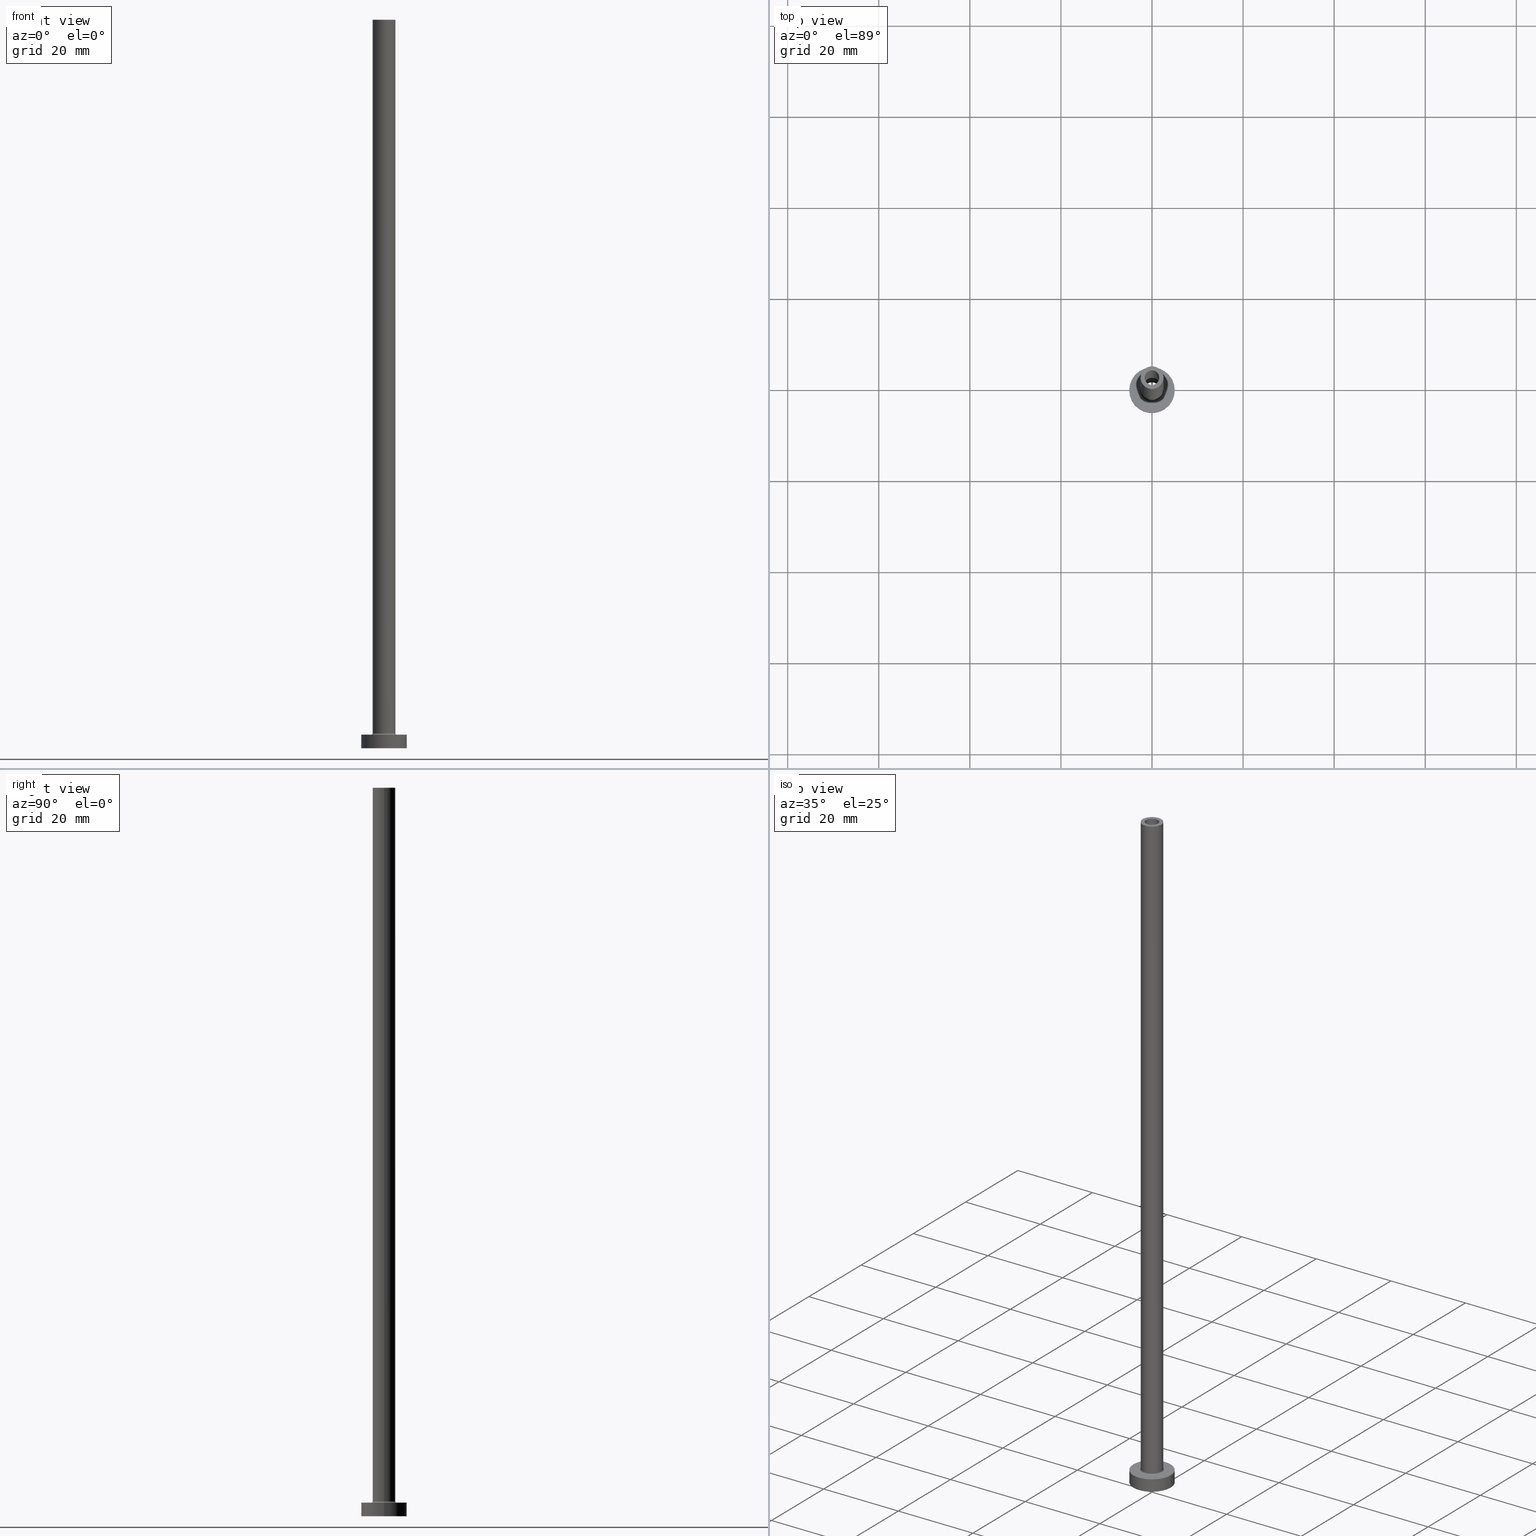
[diagram: canonical four-view strip — front | top / right | iso, engineering-drawing reading convention]
A machine part, canonical four-view strip (front | top / right | iso — engineering-drawing reading convention). The complete STEP part file that produces these views, byte-faithful:
ISO-10303-21;
HEADER;
FILE_DESCRIPTION (( 'STEP AP203' ),
    '1' );
FILE_NAME ('ea67.STEP',
    '2023-02-13T17:57:14',
    ( '' ),
    ( '' ),
    'SwSTEP 2.0',
    'SolidWorks 2019',
    '' );
FILE_SCHEMA (( 'CONFIG_CONTROL_DESIGN' ));
ENDSEC;

DATA;
#1 = ORIENTED_EDGE ( 'NONE', *, *, #189, .F. ) ;
#2 = DIRECTION ( 'NONE',  ( -0.000000000000000000, -0.000000000000000000, -1.000000000000000000 ) ) ;
#3 = CARTESIAN_POINT ( 'NONE',  ( 0.000000000000000000, 0.000000000000000000, 0.000000000000000000 ) ) ;
#4 =( NAMED_UNIT ( * ) PLANE_ANGLE_UNIT ( ) SI_UNIT ( $, .RADIAN. ) );
#5 = CIRCLE ( 'NONE', #105, 5.000000000000000000 ) ;
#6 = CARTESIAN_POINT ( 'NONE',  ( 0.000000000000000000, 0.000000000000000000, 115.0000000000000000 ) ) ;
#7 = ORIENTED_EDGE ( 'NONE', *, *, #322, .F. ) ;
#8 = LINE ( 'NONE', #71, #34 ) ;
#9 = ORIENTED_EDGE ( 'NONE', *, *, #429, .T. ) ;
#10 = APPROVAL_ROLE ( '' ) ;
#11 = AXIS2_PLACEMENT_3D ( 'NONE', #248, #55, #193 ) ;
#12 = LOCAL_TIME ( 18, 57, 14.00000000000000000, #291 ) ;
#13 = CC_DESIGN_DATE_AND_TIME_ASSIGNMENT ( #203, #300, ( #26 ) ) ;
#14 = ORIENTED_EDGE ( 'NONE', *, *, #431, .F. ) ;
#15 = COORDINATED_UNIVERSAL_TIME_OFFSET ( 1, 0, .AHEAD. ) ;
#16 = VERTEX_POINT ( 'NONE', #308 ) ;
#17 = CARTESIAN_POINT ( 'NONE',  ( 0.000000000000000000, 0.000000000000000000, 160.0000000000000000 ) ) ;
#18 = AXIS2_PLACEMENT_3D ( 'NONE', #251, #434, #282 ) ;
#19 = AXIS2_PLACEMENT_3D ( 'NONE', #319, #276, #247 ) ;
#20 = DIRECTION ( 'NONE',  ( -1.000000000000000000, 0.000000000000000000, 0.000000000000000000 ) ) ;
#21 = MANIFOLD_SOLID_BREP ( 'Odebrat vysunut�m4', #22 ) ;
#22 = CLOSED_SHELL ( 'NONE', ( #448, #305, #377, #381, #336, #229, #272, #419, #302, #129, #209, #61, #254, #367 ) ) ;
#23 = PERSON_AND_ORGANIZATION_ROLE ( 'classification_officer' ) ;
#24 = EDGE_LOOP ( 'NONE', ( #321, #253, #119, #414 ) ) ;
#25 = ORIENTED_EDGE ( 'NONE', *, *, #451, .F. ) ;
#26 = SECURITY_CLASSIFICATION ( '', '', #270 ) ;
#27 = EDGE_CURVE ( 'NONE', #215, #154, #460, .T. ) ;
#28 = CARTESIAN_POINT ( 'NONE',  ( 5.000000000000000000, 6.123233995736766282E-16, 0.000000000000000000 ) ) ;
#29 = DIRECTION ( 'NONE',  ( -1.000000000000000000, 0.000000000000000000, 0.000000000000000000 ) ) ;
#30 = FACE_OUTER_BOUND ( 'NONE', #446, .T. ) ;
#31 = EDGE_CURVE ( 'NONE', #150, #441, #453, .T. ) ;
#32 = EDGE_CURVE ( 'NONE', #70, #369, #459, .T. ) ;
#33 = CARTESIAN_POINT ( 'NONE',  ( 0.000000000000000000, 0.000000000000000000, 0.000000000000000000 ) ) ;
#34 = VECTOR ( 'NONE', #212, 1000.000000000000000 ) ;
#35 = DIRECTION ( 'NONE',  ( 1.000000000000000000, 0.000000000000000000, 0.000000000000000000 ) ) ;
#36 = PLANE ( 'NONE',  #90 ) ;
#37 = DIRECTION ( 'NONE',  ( 0.000000000000000000, 0.000000000000000000, 1.000000000000000000 ) ) ;
#38 = AXIS2_PLACEMENT_3D ( 'NONE', #33, #175, #237 ) ;
#39 = DIRECTION ( 'NONE',  ( 0.000000000000000000, 0.000000000000000000, -1.000000000000000000 ) ) ;
#40 = ORIENTED_EDGE ( 'NONE', *, *, #27, .T. ) ;
#41 = DIRECTION ( 'NONE',  ( 0.000000000000000000, 0.000000000000000000, 1.000000000000000000 ) ) ;
#42 = CARTESIAN_POINT ( 'NONE',  ( 0.000000000000000000, 0.000000000000000000, 115.0000000000000000 ) ) ;
#43 = CARTESIAN_POINT ( 'NONE',  ( -1.600000000000000089, 0.000000000000000000, 160.0000000000000000 ) ) ;
#44 = DIRECTION ( 'NONE',  ( 0.000000000000000000, 0.000000000000000000, -1.000000000000000000 ) ) ;
#45 = ORIENTED_EDGE ( 'NONE', *, *, #356, .T. ) ;
#46 = CYLINDRICAL_SURFACE ( 'NONE', #231, 2.500000000000000000 ) ;
#47 = FACE_OUTER_BOUND ( 'NONE', #373, .T. ) ;
#48 = EDGE_LOOP ( 'NONE', ( #258, #406, #353, #390 ) ) ;
#49 = EDGE_CURVE ( 'NONE', #257, #283, #85, .T. ) ;
#50 = LOCAL_TIME ( 18, 57, 14.00000000000000000, #15 ) ;
#51 = ORIENTED_EDGE ( 'NONE', *, *, #27, .F. ) ;
#52 = PERSON_AND_ORGANIZATION ( #412, #91 ) ;
#53 = CIRCLE ( 'NONE', #167, 5.000000000000000000 ) ;
#54 = EDGE_LOOP ( 'NONE', ( #400, #7 ) ) ;
#55 = DIRECTION ( 'NONE',  ( 0.000000000000000000, 0.000000000000000000, 1.000000000000000000 ) ) ;
#56 = DIRECTION ( 'NONE',  ( 0.000000000000000000, -1.000000000000000000, 0.000000000000000000 ) ) ;
#57 = VECTOR ( 'NONE', #39, 1000.000000000000000 ) ;
#58 = FACE_OUTER_BOUND ( 'NONE', #281, .T. ) ;
#59 = AXIS2_PLACEMENT_3D ( 'NONE', #313, #245, #143 ) ;
#60 = CARTESIAN_POINT ( 'NONE',  ( 0.000000000000000000, 0.000000000000000000, 160.0000000000000000 ) ) ;
#61 = ADVANCED_FACE ( 'NONE', ( #423 ), #211, .F. ) ;
#62 = DIRECTION ( 'NONE',  ( 1.000000000000000000, 0.000000000000000000, -0.000000000000000000 ) ) ;
#63 = CARTESIAN_POINT ( 'NONE',  ( -2.799999999999999822, 3.429011037612589276E-16, 2.999999999999998668 ) ) ;
#64 = VECTOR ( 'NONE', #315, 1000.000000000000000 ) ;
#65 = LOCAL_TIME ( 18, 57, 14.00000000000000000, #161 ) ;
#66 = FACE_OUTER_BOUND ( 'NONE', #290, .T. ) ;
#67 = DIRECTION ( 'NONE',  ( 1.000000000000000000, 0.000000000000000000, 0.000000000000000000 ) ) ;
#68 = CARTESIAN_POINT ( 'NONE',  ( 5.000000000000000000, 6.123233995736766282E-16, 3.000000000000000000 ) ) ;
#69 = CARTESIAN_POINT ( 'NONE',  ( 1.600000000000000089, 1.959434878635764737E-16, 160.0000000000000000 ) ) ;
#70 = VERTEX_POINT ( 'NONE', #174 ) ;
#71 = CARTESIAN_POINT ( 'NONE',  ( -1.750000000000000000, 0.000000000000000000, 119.9497474683058442 ) ) ;
#72 = CARTESIAN_POINT ( 'NONE',  ( 1.750000000000000000, 2.143131898507868297E-16, 119.9497474683058442 ) ) ;
#73 = ORIENTED_EDGE ( 'NONE', *, *, #156, .F. ) ;
#74 = CARTESIAN_POINT ( 'NONE',  ( 0.000000000000000000, 0.000000000000000000, 160.0000000000000000 ) ) ;
#75 = FACE_OUTER_BOUND ( 'NONE', #24, .T. ) ;
#76 = EDGE_LOOP ( 'NONE', ( #112, #435 ) ) ;
#77 = EDGE_CURVE ( 'NONE', #324, #349, #5, .T. ) ;
#78 = EDGE_CURVE ( 'NONE', #184, #369, #357, .T. ) ;
#79 = VERTEX_POINT ( 'NONE', #98 ) ;
#80 = EDGE_CURVE ( 'NONE', #16, #225, #53, .T. ) ;
#81 = PERSON_AND_ORGANIZATION ( #412, #91 ) ;
#82 = VERTEX_POINT ( 'NONE', #376 ) ;
#83 = APPROVAL_STATUS ( 'not_yet_approved' ) ;
#84 = DIRECTION ( 'NONE',  ( 1.000000000000000000, 0.000000000000000000, 0.000000000000000000 ) ) ;
#85 = CIRCLE ( 'NONE', #246, 1.750000000000000000 ) ;
#86 = PRODUCT_RELATED_PRODUCT_CATEGORY ( 'detail', '', ( #422 ) ) ;
#87 = DIRECTION ( 'NONE',  ( -1.000000000000000000, 0.000000000000000000, 0.000000000000000000 ) ) ;
#88 = UNCERTAINTY_MEASURE_WITH_UNIT (LENGTH_MEASURE( 1.000000000000000082E-05 ), #146, 'distance_accuracy_value', 'NONE');
#89 = DIRECTION ( 'NONE',  ( 0.000000000000000000, 0.000000000000000000, 1.000000000000000000 ) ) ;
#90 = AXIS2_PLACEMENT_3D ( 'NONE', #60, #385, #204 ) ;
#91 = ORGANIZATION ( 'NEUR�EN�', 'NEUR�EN�', '' ) ;
#92 = APPROVAL_STATUS ( 'not_yet_approved' ) ;
#93 = CARTESIAN_POINT ( 'NONE',  ( -5.000000000000000000, 0.000000000000000000, 0.000000000000000000 ) ) ;
#94 = PERSON_AND_ORGANIZATION_ROLE ( 'creator' ) ;
#95 = EDGE_LOOP ( 'NONE', ( #14, #40, #127, #397 ) ) ;
#96 = CYLINDRICAL_SURFACE ( 'NONE', #121, 5.000000000000000000 ) ;
#97 = EDGE_CURVE ( 'NONE', #16, #324, #109, .T. ) ;
#98 = CARTESIAN_POINT ( 'NONE',  ( 1.750000000000000000, 2.143131898507868297E-16, 0.000000000000000000 ) ) ;
#99 = CIRCLE ( 'NONE', #408, 5.000000000000000000 ) ;
#100 = PERSON_AND_ORGANIZATION ( #412, #91 ) ;
#101 = ADVANCED_BREP_SHAPE_REPRESENTATION ( 'ea67', ( #21, #208 ), #288 ) ;
#102 = CARTESIAN_POINT ( 'NONE',  ( 0.000000000000000000, 0.000000000000000000, 3.000000000000000000 ) ) ;
#103 = EDGE_CURVE ( 'NONE', #362, #79, #437, .T. ) ;
#104 = EDGE_CURVE ( 'NONE', #402, #70, #292, .T. ) ;
#105 = AXIS2_PLACEMENT_3D ( 'NONE', #172, #137, #141 ) ;
#106 = CARTESIAN_POINT ( 'NONE',  ( 0.000000000000000000, 0.000000000000000000, 160.0000000000000000 ) ) ;
#107 = DIRECTION ( 'NONE',  ( 1.000000000000000000, 0.000000000000000000, 0.000000000000000000 ) ) ;
#108 = DIRECTION ( 'NONE',  ( 1.000000000000000000, 0.000000000000000000, 0.000000000000000000 ) ) ;
#109 = LINE ( 'NONE', #243, #312 ) ;
#110 = EDGE_LOOP ( 'NONE', ( #159, #346, #411, #304 ) ) ;
#111 = CARTESIAN_POINT ( 'NONE',  ( -1.750000000000000000, 0.000000000000000000, 0.000000000000000000 ) ) ;
#112 = ORIENTED_EDGE ( 'NONE', *, *, #103, .F. ) ;
#113 = PLANE ( 'NONE',  #177 ) ;
#114 = FACE_BOUND ( 'NONE', #438, .T. ) ;
#115 = ORIENTED_EDGE ( 'NONE', *, *, #429, .F. ) ;
#116 = CYLINDRICAL_SURFACE ( 'NONE', #297, 1.600000000000000089 ) ;
#117 = DESIGN_CONTEXT ( 'detailed design', #425, 'design' ) ;
#118 = DIRECTION ( 'NONE',  ( 0.000000000000000000, 0.000000000000000000, 1.000000000000000000 ) ) ;
#119 = ORIENTED_EDGE ( 'NONE', *, *, #188, .T. ) ;
#120 = APPLICATION_PROTOCOL_DEFINITION ( 'international standard', 'config_control_design', 1994, #213 ) ;
#121 = AXIS2_PLACEMENT_3D ( 'NONE', #173, #232, #332 ) ;
#122 = PRODUCT_DEFINITION_SHAPE ( 'NONE', 'NONE',  #160 ) ;
#123 = EDGE_CURVE ( 'NONE', #349, #324, #230, .T. ) ;
#124 = ORIENTED_EDGE ( 'NONE', *, *, #307, .T. ) ;
#125 = PERSON_AND_ORGANIZATION_ROLE ( 'design_owner' ) ;
#126 = ORIENTED_EDGE ( 'NONE', *, *, #80, .F. ) ;
#127 = ORIENTED_EDGE ( 'NONE', *, *, #399, .F. ) ;
#128 = CYLINDRICAL_SURFACE ( 'NONE', #266, 1.750000000000000000 ) ;
#129 = ADVANCED_FACE ( 'NONE', ( #179, #30 ), #36, .T. ) ;
#130 = VECTOR ( 'NONE', #338, 1000.000000000000000 ) ;
#131 = CYLINDRICAL_SURFACE ( 'NONE', #350, 5.000000000000000000 ) ;
#132 = ORIENTED_EDGE ( 'NONE', *, *, #31, .T. ) ;
#133 = APPROVAL_ROLE ( '' ) ;
#134 = ORIENTED_EDGE ( 'NONE', *, *, #399, .T. ) ;
#135 = DIRECTION ( 'NONE',  ( 0.000000000000000000, 0.000000000000000000, 1.000000000000000000 ) ) ;
#136 = AXIS2_PLACEMENT_3D ( 'NONE', #74, #183, #386 ) ;
#137 = DIRECTION ( 'NONE',  ( 0.000000000000000000, 0.000000000000000000, 1.000000000000000000 ) ) ;
#138 = DATE_AND_TIME ( #372, #370 ) ;
#139 = CARTESIAN_POINT ( 'NONE',  ( 0.000000000000000000, 0.000000000000000000, 0.000000000000000000 ) ) ;
#140 = AXIS2_PLACEMENT_3D ( 'NONE', #216, #2, #382 ) ;
#141 = DIRECTION ( 'NONE',  ( 1.000000000000000000, 0.000000000000000000, 0.000000000000000000 ) ) ;
#142 = AXIS2_PLACEMENT_3D ( 'NONE', #344, #417, #29 ) ;
#143 = DIRECTION ( 'NONE',  ( 1.000000000000000000, 0.000000000000000000, 0.000000000000000000 ) ) ;
#144 = DIRECTION ( 'NONE',  ( -0.000000000000000000, -0.000000000000000000, -1.000000000000000000 ) ) ;
#145 = PRODUCT_DEFINITION_FORMATION_WITH_SPECIFIED_SOURCE ( 'LIBOVOLN�', '', #422, .NOT_KNOWN. ) ;
#146 =( LENGTH_UNIT ( ) NAMED_UNIT ( * ) SI_UNIT ( .MILLI., .METRE. ) );
#147 = DIRECTION ( 'NONE',  ( 1.000000000000000000, 0.000000000000000000, 0.000000000000000000 ) ) ;
#148 = FACE_OUTER_BOUND ( 'NONE', #48, .T. ) ;
#149 = EDGE_CURVE ( 'NONE', #154, #318, #407, .T. ) ;
#150 = VERTEX_POINT ( 'NONE', #240 ) ;
#151 = DIRECTION ( 'NONE',  ( 0.000000000000000000, 0.000000000000000000, -1.000000000000000000 ) ) ;
#152 = CC_DESIGN_PERSON_AND_ORGANIZATION_ASSIGNMENT ( #52, #259, ( #160 ) ) ;
#153 = CYLINDRICAL_SURFACE ( 'NONE', #195, 2.500000000000000000 ) ;
#154 = VERTEX_POINT ( 'NONE', #63 ) ;
#155 = CALENDAR_DATE ( 2023, 13, 2 ) ;
#156 = EDGE_CURVE ( 'NONE', #150, #82, #207, .T. ) ;
#157 = ORIENTED_EDGE ( 'NONE', *, *, #169, .T. ) ;
#158 = CARTESIAN_POINT ( 'NONE',  ( 0.000000000000000000, 0.000000000000000000, 0.000000000000000000 ) ) ;
#159 = ORIENTED_EDGE ( 'NONE', *, *, #31, .F. ) ;
#160 = PRODUCT_DEFINITION ( 'NEZN�M�', '', #145, #117 ) ;
#161 = COORDINATED_UNIVERSAL_TIME_OFFSET ( 1, 0, .AHEAD. ) ;
#162 = AXIS2_PLACEMENT_3D ( 'NONE', #6, #89, #348 ) ;
#163 = FACE_OUTER_BOUND ( 'NONE', #265, .T. ) ;
#164 = APPROVAL_PERSON_ORGANIZATION ( #191, #269, #222 ) ;
#165 = ORIENTED_EDGE ( 'NONE', *, *, #78, .T. ) ;
#166 = LINE ( 'NONE', #72, #340 ) ;
#167 = AXIS2_PLACEMENT_3D ( 'NONE', #102, #275, #67 ) ;
#168 = ORIENTED_EDGE ( 'NONE', *, *, #103, .T. ) ;
#169 = EDGE_CURVE ( 'NONE', #369, #184, #277, .T. ) ;
#170 = ORIENTED_EDGE ( 'NONE', *, *, #431, .T. ) ;
#171 = CALENDAR_DATE ( 2023, 13, 2 ) ;
#172 = CARTESIAN_POINT ( 'NONE',  ( 0.000000000000000000, 0.000000000000000000, 0.000000000000000000 ) ) ;
#173 = CARTESIAN_POINT ( 'NONE',  ( 0.000000000000000000, 0.000000000000000000, 3.000000000000000000 ) ) ;
#174 = CARTESIAN_POINT ( 'NONE',  ( 1.600000000000000089, 1.959434878635764737E-16, 160.0000000000000000 ) ) ;
#175 = DIRECTION ( 'NONE',  ( -0.000000000000000000, -0.000000000000000000, -1.000000000000000000 ) ) ;
#176 = AXIS2_PLACEMENT_3D ( 'NONE', #139, #273, #342 ) ;
#177 = AXIS2_PLACEMENT_3D ( 'NONE', #279, #343, #62 ) ;
#178 = DIRECTION ( 'NONE',  ( 0.000000000000000000, 0.000000000000000000, 1.000000000000000000 ) ) ;
#179 = FACE_BOUND ( 'NONE', #54, .T. ) ;
#180 = DIRECTION ( 'NONE',  ( 0.000000000000000000, 0.000000000000000000, 1.000000000000000000 ) ) ;
#181 = AXIS2_PLACEMENT_3D ( 'NONE', #226, #180, #389 ) ;
#182 = CIRCLE ( 'NONE', #19, 2.500000000000000000 ) ;
#183 = DIRECTION ( 'NONE',  ( 0.000000000000000000, 0.000000000000000000, -1.000000000000000000 ) ) ;
#184 = VERTEX_POINT ( 'NONE', #220 ) ;
#185 = CARTESIAN_POINT ( 'NONE',  ( 0.000000000000000000, 0.000000000000000000, 3.299999999999997158 ) ) ;
#186 = LINE ( 'NONE', #320, #218 ) ;
#187 = ORIENTED_EDGE ( 'NONE', *, *, #239, .T. ) ;
#188 = EDGE_CURVE ( 'NONE', #79, #362, #271, .T. ) ;
#189 = EDGE_CURVE ( 'NONE', #283, #79, #166, .T. ) ;
#190 = ORIENTED_EDGE ( 'NONE', *, *, #97, .T. ) ;
#191 = PERSON_AND_ORGANIZATION ( #412, #91 ) ;
#192 = ORIENTED_EDGE ( 'NONE', *, *, #77, .T. ) ;
#193 = DIRECTION ( 'NONE',  ( 1.000000000000000000, 0.000000000000000000, -0.000000000000000000 ) ) ;
#194 = DIRECTION ( 'NONE',  ( 1.000000000000000000, 0.000000000000000000, 0.000000000000000000 ) ) ;
#195 = AXIS2_PLACEMENT_3D ( 'NONE', #17, #392, #285 ) ;
#196 = CARTESIAN_POINT ( 'NONE',  ( 0.000000000000000000, 0.000000000000000000, 3.000000000000000000 ) ) ;
#197 = CC_DESIGN_PERSON_AND_ORGANIZATION_ASSIGNMENT ( #255, #125, ( #422 ) ) ;
#198 = ORIENTED_EDGE ( 'NONE', *, *, #49, .F. ) ;
#199 = PERSON_AND_ORGANIZATION_ROLE ( 'design_supplier' ) ;
#200 = AXIS2_PLACEMENT_3D ( 'NONE', #42, #118, #84 ) ;
#201 = APPROVAL_PERSON_ORGANIZATION ( #447, #413, #133 ) ;
#202 = CARTESIAN_POINT ( 'NONE',  ( 0.000000000000000000, 0.000000000000000000, 160.0000000000000000 ) ) ;
#203 = DATE_AND_TIME ( #171, #458 ) ;
#204 = DIRECTION ( 'NONE',  ( 1.000000000000000000, 0.000000000000000000, -0.000000000000000000 ) ) ;
#205 = CC_DESIGN_PERSON_AND_ORGANIZATION_ASSIGNMENT ( #330, #199, ( #145 ) ) ;
#206 = TOROIDAL_SURFACE ( 'NONE', #181, 2.799999999999999822, 0.2999999999999999889 ) ;
#207 = LINE ( 'NONE', #311, #64 ) ;
#208 = AXIS2_PLACEMENT_3D ( 'NONE', #158, #366, #194 ) ;
#209 = ADVANCED_FACE ( 'NONE', ( #47 ), #206, .F. ) ;
#210 = DIRECTION ( 'NONE',  ( -0.000000000000000000, -0.000000000000000000, -1.000000000000000000 ) ) ;
#211 = CYLINDRICAL_SURFACE ( 'NONE', #142, 1.750000000000000000 ) ;
#212 = DIRECTION ( 'NONE',  ( 0.000000000000000000, 0.000000000000000000, -1.000000000000000000 ) ) ;
#213 = APPLICATION_CONTEXT ( 'configuration controlled 3d designs of mechanical parts and assemblies' ) ;
#214 = DIRECTION ( 'NONE',  ( 0.000000000000000000, 0.000000000000000000, 1.000000000000000000 ) ) ;
#215 = VERTEX_POINT ( 'NONE', #280 ) ;
#216 = CARTESIAN_POINT ( 'NONE',  ( 0.000000000000000000, 0.000000000000000000, 3.000000000000000000 ) ) ;
#217 = LINE ( 'NONE', #351, #444 ) ;
#218 = VECTOR ( 'NONE', #364, 1000.000000000000000 ) ;
#219 = EDGE_LOOP ( 'NONE', ( #73, #115, #326, #170 ) ) ;
#220 = CARTESIAN_POINT ( 'NONE',  ( -1.600000000000000089, 0.000000000000000000, 115.0000000000000000 ) ) ;
#221 = ORIENTED_EDGE ( 'NONE', *, *, #322, .T. ) ;
#222 = APPROVAL_ROLE ( '' ) ;
#223 = ORIENTED_EDGE ( 'NONE', *, *, #123, .F. ) ;
#224 = CC_DESIGN_APPROVAL ( #413, ( #26 ) ) ;
#225 = VERTEX_POINT ( 'NONE', #405 ) ;
#226 = CARTESIAN_POINT ( 'NONE',  ( 0.000000000000000000, 0.000000000000000000, 3.299999999999997158 ) ) ;
#227 = CARTESIAN_POINT ( 'NONE',  ( 2.799999999999999822, 0.000000000000000000, 3.299999999999997158 ) ) ;
#228 = EDGE_CURVE ( 'NONE', #402, #184, #217, .T. ) ;
#229 = ADVANCED_FACE ( 'NONE', ( #317 ), #131, .T. ) ;
#230 = CIRCLE ( 'NONE', #176, 5.000000000000000000 ) ;
#231 = AXIS2_PLACEMENT_3D ( 'NONE', #242, #210, #424 ) ;
#232 = DIRECTION ( 'NONE',  ( -0.000000000000000000, -0.000000000000000000, -1.000000000000000000 ) ) ;
#233 = ORIENTED_EDGE ( 'NONE', *, *, #77, .F. ) ;
#234 = ORIENTED_EDGE ( 'NONE', *, *, #97, .F. ) ;
#235 = APPROVAL_DATE_TIME ( #138, #413 ) ;
#236 = CIRCLE ( 'NONE', #59, 2.500000000000000000 ) ;
#237 = DIRECTION ( 'NONE',  ( 1.000000000000000000, 0.000000000000000000, 0.000000000000000000 ) ) ;
#238 = CARTESIAN_POINT ( 'NONE',  ( -2.500000000000000000, 0.000000000000000000, 160.0000000000000000 ) ) ;
#239 = EDGE_CURVE ( 'NONE', #283, #257, #295, .T. ) ;
#240 = CARTESIAN_POINT ( 'NONE',  ( 2.500000000000000000, 3.061616997868383141E-16, 160.0000000000000000 ) ) ;
#241 = EDGE_CURVE ( 'NONE', #441, #215, #186, .T. ) ;
#242 = CARTESIAN_POINT ( 'NONE',  ( 0.000000000000000000, 0.000000000000000000, 160.0000000000000000 ) ) ;
#243 = CARTESIAN_POINT ( 'NONE',  ( -5.000000000000000000, 0.000000000000000000, 3.000000000000000000 ) ) ;
#244 = ORIENTED_EDGE ( 'NONE', *, *, #395, .T. ) ;
#245 = DIRECTION ( 'NONE',  ( 0.000000000000000000, 0.000000000000000000, 1.000000000000000000 ) ) ;
#246 = AXIS2_PLACEMENT_3D ( 'NONE', #314, #214, #420 ) ;
#247 = DIRECTION ( 'NONE',  ( 1.000000000000000000, 0.000000000000000000, 0.000000000000000000 ) ) ;
#248 = CARTESIAN_POINT ( 'NONE',  ( 0.000000000000000000, 0.000000000000000000, 3.000000000000000000 ) ) ;
#249 = ORIENTED_EDGE ( 'NONE', *, *, #228, .T. ) ;
#250 = CARTESIAN_POINT ( 'NONE',  ( 0.000000000000000000, 0.000000000000000000, 3.000000000000000000 ) ) ;
#251 = CARTESIAN_POINT ( 'NONE',  ( 0.000000000000000000, 0.000000000000000000, 115.0000000000000000 ) ) ;
#252 = AXIS2_PLACEMENT_3D ( 'NONE', #450, #135, #410 ) ;
#253 = ORIENTED_EDGE ( 'NONE', *, *, #189, .T. ) ;
#254 = ADVANCED_FACE ( 'NONE', ( #426, #163 ), #263, .F. ) ;
#255 = PERSON_AND_ORGANIZATION ( #412, #91 ) ;
#256 = AXIS2_PLACEMENT_3D ( 'NONE', #380, #456, #387 ) ;
#257 = VERTEX_POINT ( 'NONE', #301 ) ;
#258 = ORIENTED_EDGE ( 'NONE', *, *, #104, .T. ) ;
#259 = PERSON_AND_ORGANIZATION_ROLE ( 'creator' ) ;
#260 = CARTESIAN_POINT ( 'NONE',  ( 0.000000000000000000, 0.000000000000000000, 119.9497474683058442 ) ) ;
#261 = ORIENTED_EDGE ( 'NONE', *, *, #123, .T. ) ;
#262 = APPROVAL_STATUS ( 'not_yet_approved' ) ;
#263 = PLANE ( 'NONE',  #18 ) ;
#264 = DIRECTION ( 'NONE',  ( -0.000000000000000000, -0.000000000000000000, -1.000000000000000000 ) ) ;
#265 = EDGE_LOOP ( 'NONE', ( #198, #365 ) ) ;
#266 = AXIS2_PLACEMENT_3D ( 'NONE', #260, #298, #87 ) ;
#267 = TOROIDAL_SURFACE ( 'NONE', #323, 2.799999999999999822, 0.2999999999999999889 ) ;
#268 = ORIENTED_EDGE ( 'NONE', *, *, #443, .T. ) ;
#269 = APPROVAL ( #262, 'NEUR�EN�' ) ;
#270 = SECURITY_CLASSIFICATION_LEVEL ( 'unclassified' ) ;
#271 = CIRCLE ( 'NONE', #374, 1.750000000000000000 ) ;
#272 = ADVANCED_FACE ( 'NONE', ( #114, #430 ), #355, .T. ) ;
#273 = DIRECTION ( 'NONE',  ( 0.000000000000000000, 0.000000000000000000, 1.000000000000000000 ) ) ;
#274 = DIRECTION ( 'NONE',  ( 1.224646799147353207E-16, 1.000000000000000000, -0.000000000000000000 ) ) ;
#275 = DIRECTION ( 'NONE',  ( 0.000000000000000000, 0.000000000000000000, 1.000000000000000000 ) ) ;
#276 = DIRECTION ( 'NONE',  ( 0.000000000000000000, 0.000000000000000000, 1.000000000000000000 ) ) ;
#277 = CIRCLE ( 'NONE', #200, 1.600000000000000089 ) ;
#278 = DIRECTION ( 'NONE',  ( -1.000000000000000000, 1.224646799147353207E-16, 0.000000000000000000 ) ) ;
#279 = CARTESIAN_POINT ( 'NONE',  ( 0.000000000000000000, 0.000000000000000000, 0.000000000000000000 ) ) ;
#280 = CARTESIAN_POINT ( 'NONE',  ( -2.500000000000000000, 0.000000000000000000, 3.299999999999997158 ) ) ;
#281 = EDGE_LOOP ( 'NONE', ( #299, #45, #261, #234 ) ) ;
#282 = DIRECTION ( 'NONE',  ( 1.000000000000000000, 0.000000000000000000, -0.000000000000000000 ) ) ;
#283 = VERTEX_POINT ( 'NONE', #404 ) ;
#284 = CARTESIAN_POINT ( 'NONE',  ( 0.000000000000000000, 0.000000000000000000, 3.299999999999997158 ) ) ;
#285 = DIRECTION ( 'NONE',  ( -1.000000000000000000, 0.000000000000000000, 0.000000000000000000 ) ) ;
#286 = APPROVAL ( #83, 'NEUR�EN�' ) ;
#287 = ORIENTED_EDGE ( 'NONE', *, *, #149, .T. ) ;
#288 =( GEOMETRIC_REPRESENTATION_CONTEXT ( 3 ) GLOBAL_UNCERTAINTY_ASSIGNED_CONTEXT ( ( #88 ) ) GLOBAL_UNIT_ASSIGNED_CONTEXT ( ( #146, #4, #328 ) ) REPRESENTATION_CONTEXT ( 'NONE', 'WORKASPACE' ) );
#289 = APPROVAL_DATE_TIME ( #325, #286 ) ;
#290 = EDGE_LOOP ( 'NONE', ( #233, #223 ) ) ;
#291 = COORDINATED_UNIVERSAL_TIME_OFFSET ( 1, 0, .AHEAD. ) ;
#292 = CIRCLE ( 'NONE', #383, 1.600000000000000089 ) ;
#293 = ORIENTED_EDGE ( 'NONE', *, *, #149, .F. ) ;
#294 = DATE_AND_TIME ( #440, #50 ) ;
#295 = CIRCLE ( 'NONE', #162, 1.750000000000000000 ) ;
#296 = DATE_TIME_ROLE ( 'creation_date' ) ;
#297 = AXIS2_PLACEMENT_3D ( 'NONE', #106, #151, #316 ) ;
#298 = DIRECTION ( 'NONE',  ( 0.000000000000000000, 0.000000000000000000, -1.000000000000000000 ) ) ;
#299 = ORIENTED_EDGE ( 'NONE', *, *, #395, .F. ) ;
#300 = DATE_TIME_ROLE ( 'classification_date' ) ;
#301 = CARTESIAN_POINT ( 'NONE',  ( -1.750000000000000000, 0.000000000000000000, 115.0000000000000000 ) ) ;
#302 = ADVANCED_FACE ( 'NONE', ( #327 ), #153, .T. ) ;
#303 = ORIENTED_EDGE ( 'NONE', *, *, #169, .F. ) ;
#304 = ORIENTED_EDGE ( 'NONE', *, *, #241, .F. ) ;
#305 = ADVANCED_FACE ( 'NONE', ( #75 ), #128, .F. ) ;
#306 = DIRECTION ( 'NONE',  ( 0.000000000000000000, 0.000000000000000000, 1.000000000000000000 ) ) ;
#307 = EDGE_CURVE ( 'NONE', #82, #318, #339, .T. ) ;
#308 = CARTESIAN_POINT ( 'NONE',  ( -5.000000000000000000, 0.000000000000000000, 3.000000000000000000 ) ) ;
#309 = DIRECTION ( 'NONE',  ( -0.000000000000000000, -0.000000000000000000, -1.000000000000000000 ) ) ;
#310 = CARTESIAN_POINT ( 'NONE',  ( 1.600000000000000089, 1.959434878635764737E-16, 115.0000000000000000 ) ) ;
#311 = CARTESIAN_POINT ( 'NONE',  ( 2.500000000000000000, 3.061616997868383141E-16, 160.0000000000000000 ) ) ;
#312 = VECTOR ( 'NONE', #144, 1000.000000000000000 ) ;
#313 = CARTESIAN_POINT ( 'NONE',  ( 0.000000000000000000, 0.000000000000000000, 160.0000000000000000 ) ) ;
#314 = CARTESIAN_POINT ( 'NONE',  ( 0.000000000000000000, 0.000000000000000000, 115.0000000000000000 ) ) ;
#315 = DIRECTION ( 'NONE',  ( -0.000000000000000000, -0.000000000000000000, -1.000000000000000000 ) ) ;
#316 = DIRECTION ( 'NONE',  ( -1.000000000000000000, 0.000000000000000000, 0.000000000000000000 ) ) ;
#317 = FACE_OUTER_BOUND ( 'NONE', #388, .T. ) ;
#318 = VERTEX_POINT ( 'NONE', #334 ) ;
#319 = CARTESIAN_POINT ( 'NONE',  ( 0.000000000000000000, 0.000000000000000000, 3.299999999999997158 ) ) ;
#320 = CARTESIAN_POINT ( 'NONE',  ( -2.500000000000000000, 0.000000000000000000, 160.0000000000000000 ) ) ;
#321 = ORIENTED_EDGE ( 'NONE', *, *, #49, .T. ) ;
#322 = EDGE_CURVE ( 'NONE', #70, #402, #457, .T. ) ;
#323 = AXIS2_PLACEMENT_3D ( 'NONE', #185, #178, #354 ) ;
#324 = VERTEX_POINT ( 'NONE', #93 ) ;
#325 = DATE_AND_TIME ( #155, #12 ) ;
#326 = ORIENTED_EDGE ( 'NONE', *, *, #241, .T. ) ;
#327 = FACE_OUTER_BOUND ( 'NONE', #219, .T. ) ;
#328 =( NAMED_UNIT ( * ) SI_UNIT ( $, .STERADIAN. ) SOLID_ANGLE_UNIT ( ) );
#329 = DIRECTION ( 'NONE',  ( 0.000000000000000000, 0.000000000000000000, -1.000000000000000000 ) ) ;
#330 = PERSON_AND_ORGANIZATION ( #412, #91 ) ;
#331 = APPROVAL_PERSON_ORGANIZATION ( #81, #286, #10 ) ;
#332 = DIRECTION ( 'NONE',  ( -1.000000000000000000, 0.000000000000000000, 0.000000000000000000 ) ) ;
#333 = COORDINATED_UNIVERSAL_TIME_OFFSET ( 1, 0, .AHEAD. ) ;
#334 = CARTESIAN_POINT ( 'NONE',  ( 2.799999999999999822, 0.000000000000000000, 2.999999999999998668 ) ) ;
#335 = DIRECTION ( 'NONE',  ( 1.000000000000000000, 0.000000000000000000, 0.000000000000000000 ) ) ;
#336 = ADVANCED_FACE ( 'NONE', ( #58 ), #96, .T. ) ;
#337 = CARTESIAN_POINT ( 'NONE',  ( 0.000000000000000000, 0.000000000000000000, 3.000000000000000000 ) ) ;
#338 = DIRECTION ( 'NONE',  ( -0.000000000000000000, -0.000000000000000000, -1.000000000000000000 ) ) ;
#339 = CIRCLE ( 'NONE', #391, 0.2999999999999999334 ) ;
#340 = VECTOR ( 'NONE', #44, 1000.000000000000000 ) ;
#341 = CIRCLE ( 'NONE', #140, 2.799999999999999822 ) ;
#342 = DIRECTION ( 'NONE',  ( 1.000000000000000000, 0.000000000000000000, 0.000000000000000000 ) ) ;
#343 = DIRECTION ( 'NONE',  ( 0.000000000000000000, 0.000000000000000000, 1.000000000000000000 ) ) ;
#344 = CARTESIAN_POINT ( 'NONE',  ( 0.000000000000000000, 0.000000000000000000, 119.9497474683058442 ) ) ;
#345 = AXIS2_PLACEMENT_3D ( 'NONE', #416, #274, #278 ) ;
#346 = ORIENTED_EDGE ( 'NONE', *, *, #156, .T. ) ;
#347 = CYLINDRICAL_SURFACE ( 'NONE', #136, 1.600000000000000089 ) ;
#348 = DIRECTION ( 'NONE',  ( 1.000000000000000000, 0.000000000000000000, 0.000000000000000000 ) ) ;
#349 = VERTEX_POINT ( 'NONE', #28 ) ;
#350 = AXIS2_PLACEMENT_3D ( 'NONE', #196, #368, #20 ) ;
#351 = CARTESIAN_POINT ( 'NONE',  ( -1.600000000000000089, 0.000000000000000000, 160.0000000000000000 ) ) ;
#352 = CC_DESIGN_APPROVAL ( #286, ( #160 ) ) ;
#353 = ORIENTED_EDGE ( 'NONE', *, *, #78, .F. ) ;
#354 = DIRECTION ( 'NONE',  ( 1.000000000000000000, 0.000000000000000000, 0.000000000000000000 ) ) ;
#355 = PLANE ( 'NONE',  #11 ) ;
#356 = EDGE_CURVE ( 'NONE', #225, #349, #452, .T. ) ;
#357 = CIRCLE ( 'NONE', #396, 1.600000000000000089 ) ;
#358 = EDGE_LOOP ( 'NONE', ( #1, #187, #268, #168 ) ) ;
#359 = MECHANICAL_CONTEXT ( 'NONE', #213, 'mechanical' ) ;
#360 = CC_DESIGN_PERSON_AND_ORGANIZATION_ASSIGNMENT ( #100, #23, ( #26 ) ) ;
#361 = EDGE_LOOP ( 'NONE', ( #363, #244 ) ) ;
#362 = VERTEX_POINT ( 'NONE', #111 ) ;
#363 = ORIENTED_EDGE ( 'NONE', *, *, #80, .T. ) ;
#364 = DIRECTION ( 'NONE',  ( -0.000000000000000000, -0.000000000000000000, -1.000000000000000000 ) ) ;
#365 = ORIENTED_EDGE ( 'NONE', *, *, #239, .F. ) ;
#366 = DIRECTION ( 'NONE',  ( 0.000000000000000000, 0.000000000000000000, 1.000000000000000000 ) ) ;
#367 = ADVANCED_FACE ( 'NONE', ( #428 ), #347, .F. ) ;
#368 = DIRECTION ( 'NONE',  ( -0.000000000000000000, -0.000000000000000000, -1.000000000000000000 ) ) ;
#369 = VERTEX_POINT ( 'NONE', #310 ) ;
#370 = LOCAL_TIME ( 18, 57, 14.00000000000000000, #333 ) ;
#371 = EDGE_LOOP ( 'NONE', ( #165, #157 ) ) ;
#372 = CALENDAR_DATE ( 2023, 13, 2 ) ;
#373 = EDGE_LOOP ( 'NONE', ( #51, #25, #124, #293 ) ) ;
#374 = AXIS2_PLACEMENT_3D ( 'NONE', #3, #264, #147 ) ;
#375 = CIRCLE ( 'NONE', #384, 2.500000000000000000 ) ;
#376 = CARTESIAN_POINT ( 'NONE',  ( 2.500000000000000000, 3.061616997868383141E-16, 3.299999999999997158 ) ) ;
#377 = ADVANCED_FACE ( 'NONE', ( #379 ), #267, .F. ) ;
#378 = DIRECTION ( 'NONE',  ( 0.000000000000000000, 0.000000000000000000, 1.000000000000000000 ) ) ;
#379 = FACE_OUTER_BOUND ( 'NONE', #95, .T. ) ;
#380 = CARTESIAN_POINT ( 'NONE',  ( 0.000000000000000000, 0.000000000000000000, 160.0000000000000000 ) ) ;
#381 = ADVANCED_FACE ( 'NONE', ( #418 ), #46, .T. ) ;
#382 = DIRECTION ( 'NONE',  ( 1.000000000000000000, 0.000000000000000000, 0.000000000000000000 ) ) ;
#383 = AXIS2_PLACEMENT_3D ( 'NONE', #202, #378, #335 ) ;
#384 = AXIS2_PLACEMENT_3D ( 'NONE', #284, #41, #35 ) ;
#385 = DIRECTION ( 'NONE',  ( 0.000000000000000000, 0.000000000000000000, 1.000000000000000000 ) ) ;
#386 = DIRECTION ( 'NONE',  ( -1.000000000000000000, 0.000000000000000000, 0.000000000000000000 ) ) ;
#387 = DIRECTION ( 'NONE',  ( 1.000000000000000000, 0.000000000000000000, 0.000000000000000000 ) ) ;
#388 = EDGE_LOOP ( 'NONE', ( #393, #126, #190, #192 ) ) ;
#389 = DIRECTION ( 'NONE',  ( 1.000000000000000000, 0.000000000000000000, 0.000000000000000000 ) ) ;
#390 = ORIENTED_EDGE ( 'NONE', *, *, #228, .F. ) ;
#391 = AXIS2_PLACEMENT_3D ( 'NONE', #227, #56, #329 ) ;
#392 = DIRECTION ( 'NONE',  ( -0.000000000000000000, -0.000000000000000000, -1.000000000000000000 ) ) ;
#393 = ORIENTED_EDGE ( 'NONE', *, *, #356, .F. ) ;
#394 = APPLICATION_PROTOCOL_DEFINITION ( 'international standard', 'config_control_design', 1994, #425 ) ;
#395 = EDGE_CURVE ( 'NONE', #225, #16, #99, .T. ) ;
#396 = AXIS2_PLACEMENT_3D ( 'NONE', #461, #306, #454 ) ;
#397 = ORIENTED_EDGE ( 'NONE', *, *, #307, .F. ) ;
#398 = DATE_AND_TIME ( #436, #65 ) ;
#399 = EDGE_CURVE ( 'NONE', #318, #154, #341, .T. ) ;
#400 = ORIENTED_EDGE ( 'NONE', *, *, #104, .F. ) ;
#401 = CC_DESIGN_APPROVAL ( #269, ( #145 ) ) ;
#402 = VERTEX_POINT ( 'NONE', #43 ) ;
#403 = PERSON_AND_ORGANIZATION ( #412, #91 ) ;
#404 = CARTESIAN_POINT ( 'NONE',  ( 1.750000000000000000, 2.143131898507868297E-16, 115.0000000000000000 ) ) ;
#405 = CARTESIAN_POINT ( 'NONE',  ( 5.000000000000000000, 6.123233995736766282E-16, 3.000000000000000000 ) ) ;
#406 = ORIENTED_EDGE ( 'NONE', *, *, #32, .T. ) ;
#407 = CIRCLE ( 'NONE', #433, 2.799999999999999822 ) ;
#408 = AXIS2_PLACEMENT_3D ( 'NONE', #250, #37, #108 ) ;
#409 = COORDINATED_UNIVERSAL_TIME_OFFSET ( 1, 0, .AHEAD. ) ;
#410 = DIRECTION ( 'NONE',  ( 1.000000000000000000, 0.000000000000000000, 0.000000000000000000 ) ) ;
#411 = ORIENTED_EDGE ( 'NONE', *, *, #451, .T. ) ;
#412 = PERSON ( 'NEUR�EN�', 'NEUR�EN�', 'NEUR�EN�', ('NEUR�EN�'), ('NEUR�EN�'), ('NEUR�EN�') ) ;
#413 = APPROVAL ( #92, 'NEUR�EN�' ) ;
#414 = ORIENTED_EDGE ( 'NONE', *, *, #443, .F. ) ;
#415 = CC_DESIGN_SECURITY_CLASSIFICATION ( #26, ( #145 ) ) ;
#416 = CARTESIAN_POINT ( 'NONE',  ( -2.799999999999999822, 3.429011037612588783E-16, 3.299999999999997158 ) ) ;
#417 = DIRECTION ( 'NONE',  ( 0.000000000000000000, 0.000000000000000000, -1.000000000000000000 ) ) ;
#418 = FACE_OUTER_BOUND ( 'NONE', #110, .T. ) ;
#419 = ADVANCED_FACE ( 'NONE', ( #421, #66 ), #113, .F. ) ;
#420 = DIRECTION ( 'NONE',  ( 1.000000000000000000, 0.000000000000000000, 0.000000000000000000 ) ) ;
#421 = FACE_BOUND ( 'NONE', #76, .T. ) ;
#422 = PRODUCT ( 'ea67', 'ea67', '', ( #359 ) ) ;
#423 = FACE_OUTER_BOUND ( 'NONE', #358, .T. ) ;
#424 = DIRECTION ( 'NONE',  ( -1.000000000000000000, 0.000000000000000000, 0.000000000000000000 ) ) ;
#425 = APPLICATION_CONTEXT ( 'configuration controlled 3d designs of mechanical parts and assemblies' ) ;
#426 = FACE_BOUND ( 'NONE', #371, .T. ) ;
#427 = ORIENTED_EDGE ( 'NONE', *, *, #32, .F. ) ;
#428 = FACE_OUTER_BOUND ( 'NONE', #432, .T. ) ;
#429 = EDGE_CURVE ( 'NONE', #441, #150, #236, .T. ) ;
#430 = FACE_OUTER_BOUND ( 'NONE', #361, .T. ) ;
#431 = EDGE_CURVE ( 'NONE', #215, #82, #182, .T. ) ;
#432 = EDGE_LOOP ( 'NONE', ( #427, #221, #249, #303 ) ) ;
#433 = AXIS2_PLACEMENT_3D ( 'NONE', #337, #309, #107 ) ;
#434 = DIRECTION ( 'NONE',  ( 0.000000000000000000, 0.000000000000000000, 1.000000000000000000 ) ) ;
#435 = ORIENTED_EDGE ( 'NONE', *, *, #188, .F. ) ;
#436 = CALENDAR_DATE ( 2023, 13, 2 ) ;
#437 = CIRCLE ( 'NONE', #38, 1.750000000000000000 ) ;
#438 = EDGE_LOOP ( 'NONE', ( #134, #287 ) ) ;
#439 = CC_DESIGN_DATE_AND_TIME_ASSIGNMENT ( #398, #296, ( #160 ) ) ;
#440 = CALENDAR_DATE ( 2023, 13, 2 ) ;
#441 = VERTEX_POINT ( 'NONE', #238 ) ;
#442 = APPROVAL_DATE_TIME ( #294, #269 ) ;
#443 = EDGE_CURVE ( 'NONE', #257, #362, #8, .T. ) ;
#444 = VECTOR ( 'NONE', #445, 1000.000000000000000 ) ;
#445 = DIRECTION ( 'NONE',  ( 0.000000000000000000, 0.000000000000000000, -1.000000000000000000 ) ) ;
#446 = EDGE_LOOP ( 'NONE', ( #9, #132 ) ) ;
#447 = PERSON_AND_ORGANIZATION ( #412, #91 ) ;
#448 = ADVANCED_FACE ( 'NONE', ( #148 ), #116, .F. ) ;
#449 = CC_DESIGN_PERSON_AND_ORGANIZATION_ASSIGNMENT ( #403, #94, ( #145 ) ) ;
#450 = CARTESIAN_POINT ( 'NONE',  ( 0.000000000000000000, 0.000000000000000000, 160.0000000000000000 ) ) ;
#451 = EDGE_CURVE ( 'NONE', #82, #215, #375, .T. ) ;
#452 = LINE ( 'NONE', #68, #130 ) ;
#453 = CIRCLE ( 'NONE', #256, 2.500000000000000000 ) ;
#454 = DIRECTION ( 'NONE',  ( 1.000000000000000000, 0.000000000000000000, 0.000000000000000000 ) ) ;
#455 = SHAPE_DEFINITION_REPRESENTATION ( #122, #101 ) ;
#456 = DIRECTION ( 'NONE',  ( 0.000000000000000000, 0.000000000000000000, 1.000000000000000000 ) ) ;
#457 = CIRCLE ( 'NONE', #252, 1.600000000000000089 ) ;
#458 = LOCAL_TIME ( 18, 57, 14.00000000000000000, #409 ) ;
#459 = LINE ( 'NONE', #69, #57 ) ;
#460 = CIRCLE ( 'NONE', #345, 0.2999999999999999334 ) ;
#461 = CARTESIAN_POINT ( 'NONE',  ( 0.000000000000000000, 0.000000000000000000, 115.0000000000000000 ) ) ;
ENDSEC;
END-ISO-10303-21;
